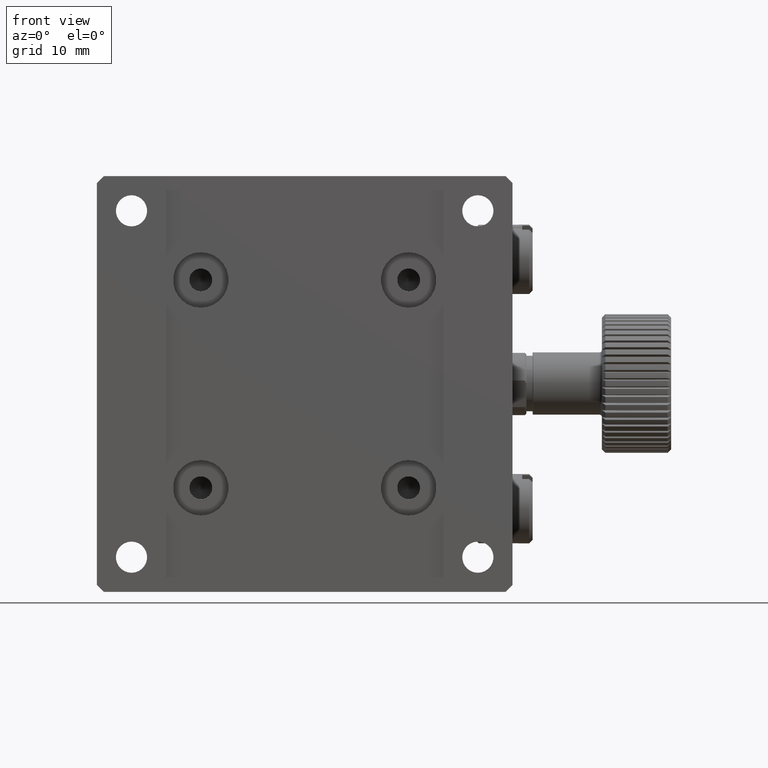
[diagram: clean part render]
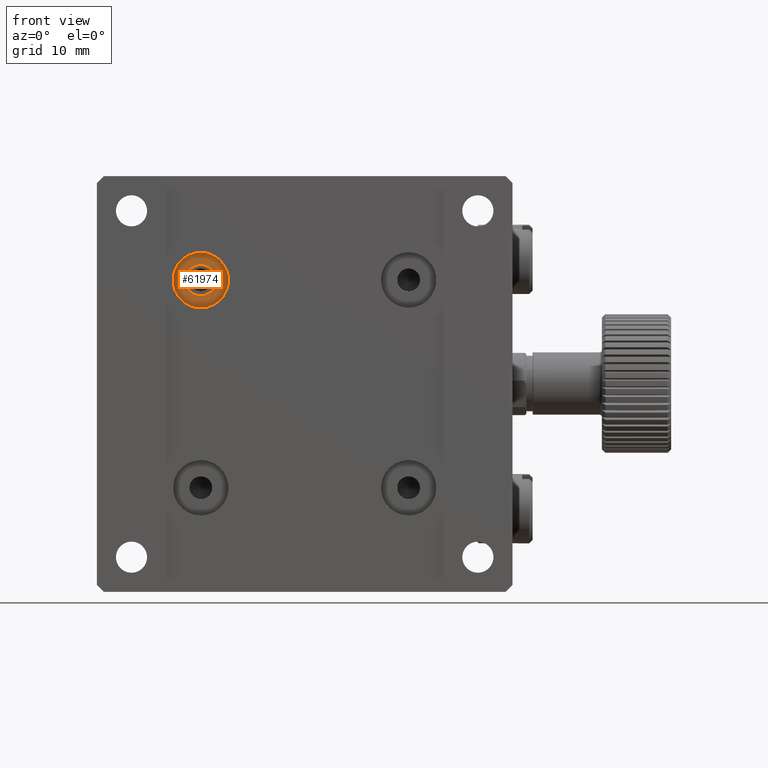
[diagram: same view with one face highlighted and labeled with its STEP entity id]
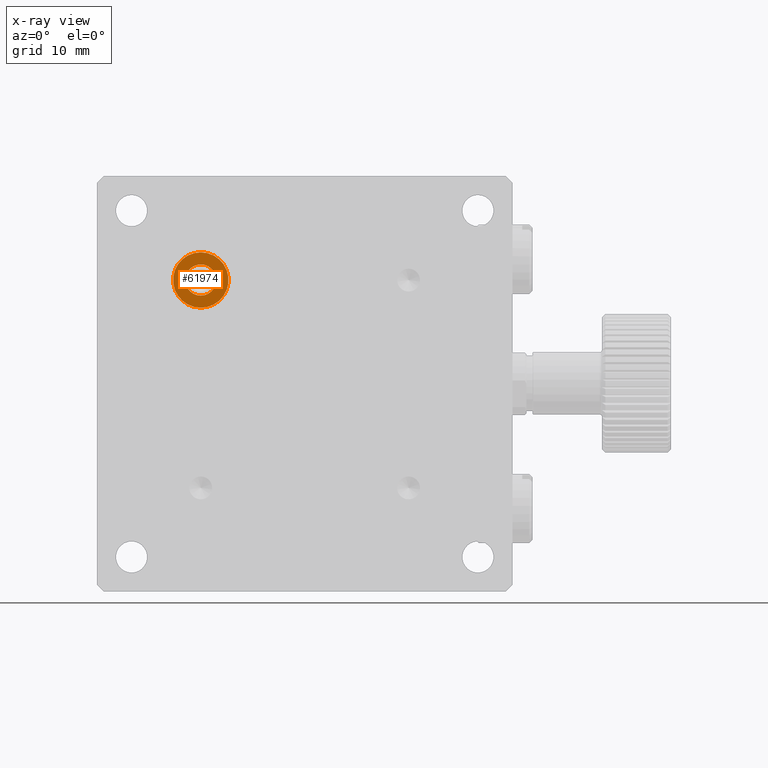
[diagram: x-ray of the same camera — body ghosted, the highlighted face saturated]
A machine part, front view. The second image highlights one B-rep face of the part: STEP entity #61974.
The next image is the same camera in x-ray: the body ghosted, the highlighted face saturated — about 0% of this face is hidden behind the body in this view.
In plain terms, the highlighted planar face has unit normal (0, 1, 0).
Its self-contained STEP definition (entity closure, byte-faithful):
#2736 = DIRECTION ( 'NONE',  ( 0.000000000000000000, 1.000000000000000000, 0.000000000000000000 ) ) ;
#6141 = ORIENTED_EDGE ( 'NONE', *, *, #13716, .T. ) ;
#6850 = AXIS2_PLACEMENT_3D ( 'NONE', #43006, #2736, #18534 ) ;
#11465 = AXIS2_PLACEMENT_3D ( 'NONE', #74603, #24101, #106691 ) ;
#13716 = EDGE_CURVE ( 'NONE', #75653, #75653, #81491, .T. ) ;
#15149 = DIRECTION ( 'NONE',  ( 0.000000000000000000, 1.000000000000000000, 0.000000000000000000 ) ) ;
#18534 = DIRECTION ( 'NONE',  ( 0.000000000000000000, 0.000000000000000000, -1.000000000000000000 ) ) ;
#23659 = CIRCLE ( 'NONE', #11465, 3.999999999999996447 ) ;
#24081 = CARTESIAN_POINT ( 'NONE',  ( 15.00000000000001066, 4.700000000000000178, 42.74999999999999289 ) ) ;
#24101 = DIRECTION ( 'NONE',  ( 0.000000000000000000, 1.000000000000000000, 0.000000000000000000 ) ) ;
#30917 = PLANE ( 'NONE',  #37449 ) ;
#33404 = EDGE_LOOP ( 'NONE', ( #6141 ) ) ;
#35980 = ORIENTED_EDGE ( 'NONE', *, *, #80495, .F. ) ;
#37449 = AXIS2_PLACEMENT_3D ( 'NONE', #105893, #15149, #73264 ) ;
#43006 = CARTESIAN_POINT ( 'NONE',  ( 15.00000000000001066, 4.700000000000000178, 44.99999999999999289 ) ) ;
#61974 = ADVANCED_FACE ( 'NONE', ( #72738, #81437 ), #30917, .F. ) ;
#71788 = CARTESIAN_POINT ( 'NONE',  ( 15.00000000000001066, 4.700000000000000178, 40.99999999999999289 ) ) ;
#72738 = FACE_OUTER_BOUND ( 'NONE', #106263, .T. ) ;
#73264 = DIRECTION ( 'NONE',  ( 0.000000000000000000, -0.000000000000000000, 1.000000000000000000 ) ) ;
#74603 = CARTESIAN_POINT ( 'NONE',  ( 15.00000000000001066, 4.700000000000000178, 44.99999999999999289 ) ) ;
#75653 = VERTEX_POINT ( 'NONE', #24081 ) ;
#80495 = EDGE_CURVE ( 'NONE', #81029, #81029, #23659, .T. ) ;
#81029 = VERTEX_POINT ( 'NONE', #71788 ) ;
#81437 = FACE_BOUND ( 'NONE', #33404, .T. ) ;
#81491 = CIRCLE ( 'NONE', #6850, 2.250000000000001776 ) ;
#105893 = CARTESIAN_POINT ( 'NONE',  ( 17.25000000000000711, 4.700000000000000178, 44.99999999999999289 ) ) ;
#106263 = EDGE_LOOP ( 'NONE', ( #35980 ) ) ;
#106691 = DIRECTION ( 'NONE',  ( 0.000000000000000000, 0.000000000000000000, -1.000000000000000000 ) ) ;